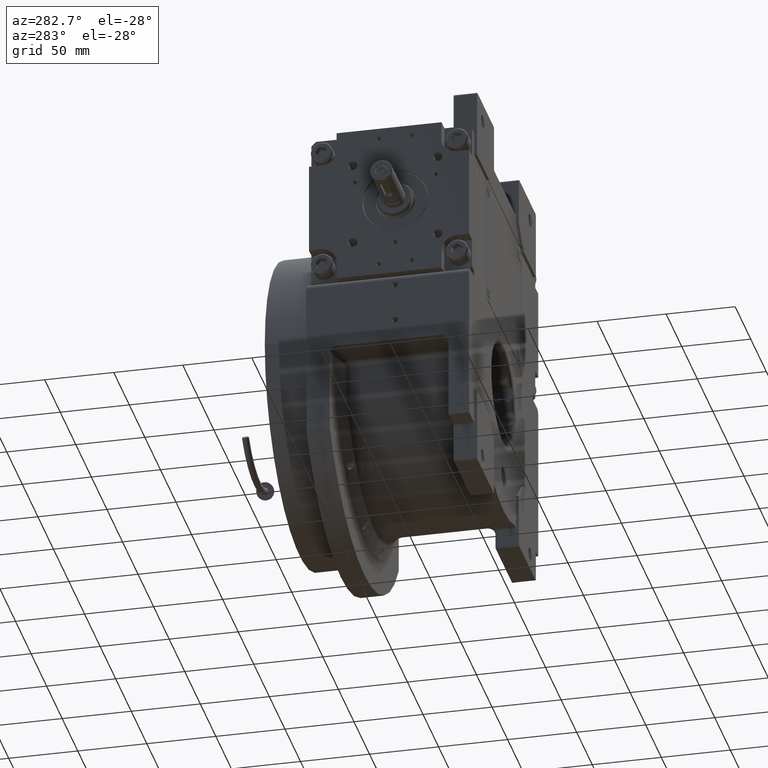
[diagram: clean part render]
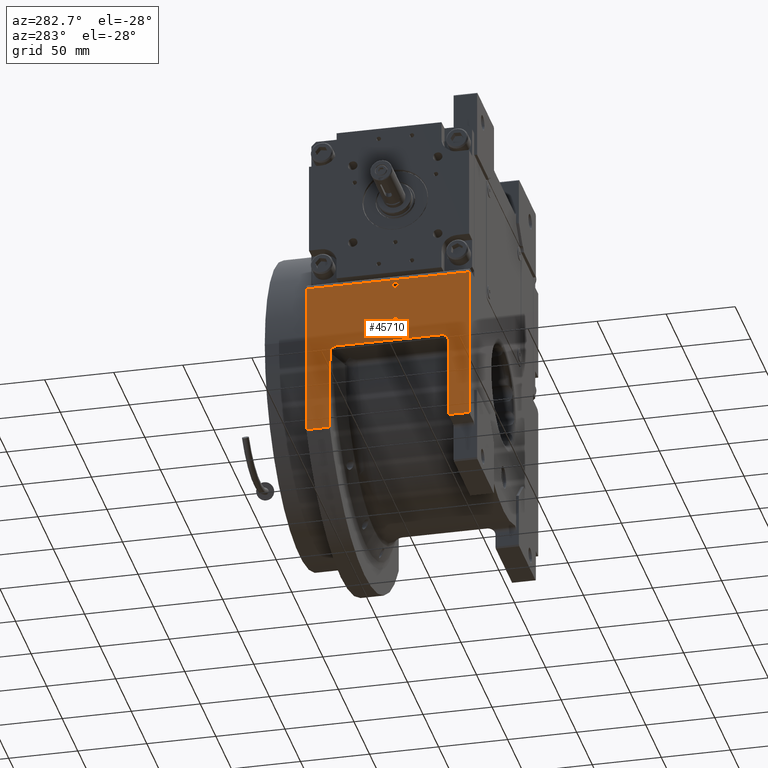
[diagram: same view with one face highlighted and labeled with its STEP entity id]
A machine part, auxiliary view. The second image highlights one B-rep face of the part: STEP entity #45710.
In plain terms, the highlighted planar face has unit normal (-1, 0, 0).
Its self-contained STEP definition (entity closure, byte-faithful):
#470 = ORIENTED_EDGE ( 'NONE', *, *, #44298, .T. ) ;
#1448 = VECTOR ( 'NONE', #68646, 1000.000000000000000 ) ;
#1565 = EDGE_LOOP ( 'NONE', ( #56351, #31490 ) ) ;
#2079 = CARTESIAN_POINT ( 'NONE',  ( -111.0000000000000142, 47.39775283363938030, -18.01025571059393826 ) ) ;
#3132 = CARTESIAN_POINT ( 'NONE',  ( -111.0000000000000000, -33.50000000000000000, -7.000000000000000000 ) ) ;
#3366 = CARTESIAN_POINT ( 'NONE',  ( -111.0000000000000142, 47.23304483909880958, -11.43688986518032635 ) ) ;
#3730 = CARTESIAN_POINT ( 'NONE',  ( -111.0000000000000142, 47.17730589702550503, -10.96906219321990150 ) ) ;
#3801 = ORIENTED_EDGE ( 'NONE', *, *, #66206, .T. ) ;
#4188 = ORIENTED_EDGE ( 'NONE', *, *, #17393, .F. ) ;
#4438 = VECTOR ( 'NONE', #65009, 1000.000000000000000 ) ;
#4695 = CARTESIAN_POINT ( 'NONE',  ( -111.0000000000000000, 2.100000000000000089, 37.00000000000000000 ) ) ;
#5719 = CARTESIAN_POINT ( 'NONE',  ( -111.0000000000000000, -2.100000000000000089, 37.00000000000000000 ) ) ;
#6119 = CARTESIAN_POINT ( 'NONE',  ( -111.0000000000000000, -38.50000000000000000, -12.17638090205042189 ) ) ;
#6448 = ORIENTED_EDGE ( 'NONE', *, *, #12767, .F. ) ;
#6502 = VERTEX_POINT ( 'NONE', #21757 ) ;
#6753 = VERTEX_POINT ( 'NONE', #67785 ) ;
#7956 = CARTESIAN_POINT ( 'NONE',  ( -111.0000000000000000, -2.100000000000000089, 9.000000000000000000 ) ) ;
#8390 = EDGE_CURVE ( 'NONE', #6502, #24526, #61072, .T. ) ;
#8938 = CARTESIAN_POINT ( 'NONE',  ( -111.0000000000000284, 44.80537002266407853, -7.628406989121505610 ) ) ;
#9105 = DIRECTION ( 'NONE',  ( 1.000000000000000000, 0.000000000000000000, 0.000000000000000000 ) ) ;
#9311 = CARTESIAN_POINT ( 'NONE',  ( -111.0000000000000142, 43.04624886168785025, -7.001080695584134261 ) ) ;
#9532 = VERTEX_POINT ( 'NONE', #4695 ) ;
#10273 = CIRCLE ( 'NONE', #52629, 2.100000000000000089 ) ;
#10298 = VERTEX_POINT ( 'NONE', #24074 ) ;
#10341 = DIRECTION ( 'NONE',  ( 0.000000000000000000, -1.000000000000000000, 0.000000000000000000 ) ) ;
#11539 = DIRECTION ( 'NONE',  ( 1.000000000000000000, 0.000000000000000000, 0.000000000000000000 ) ) ;
#11942 = LINE ( 'NONE', #17502, #4438 ) ;
#12175 = CARTESIAN_POINT ( 'NONE',  ( -110.9999999999999716, 47.35640947859300098, -16.28572579493090444 ) ) ;
#12355 = CARTESIAN_POINT ( 'NONE',  ( -111.0000000000000000, -33.50000000000000000, -7.000000000000000000 ) ) ;
#12519 = CARTESIAN_POINT ( 'NONE',  ( -111.0000000000000142, 47.38697793714037942, -17.55712914402924696 ) ) ;
#12767 = EDGE_CURVE ( 'NONE', #37406, #6502, #42397, .T. ) ;
#13923 = EDGE_CURVE ( 'NONE', #9532, #23347, #10273, .T. ) ;
#14769 = ORIENTED_EDGE ( 'NONE', *, *, #55313, .F. ) ;
#15201 = CARTESIAN_POINT ( 'NONE',  ( -111.0000000000000142, 46.90681310458562336, -10.07660401504372771 ) ) ;
#15991 = CARTESIAN_POINT ( 'NONE',  ( -111.0000000000000000, 64.50000000000000000, 41.00000000000000000 ) ) ;
#16752 = CARTESIAN_POINT ( 'NONE',  ( -111.0000000000000000, -3.552713678800499352E-15, 37.00000000000000000 ) ) ;
#16892 = DIRECTION ( 'NONE',  ( 0.000000000000000000, 0.000000000000000000, 1.000000000000000000 ) ) ;
#17393 = EDGE_CURVE ( 'NONE', #24526, #68305, #24162, .T. ) ;
#17502 = CARTESIAN_POINT ( 'NONE',  ( -111.0000000000000000, 47.50000000000000000, -71.43528539874399996 ) ) ;
#17570 = LINE ( 'NONE', #32613, #42520 ) ;
#18168 = AXIS2_PLACEMENT_3D ( 'NONE', #68532, #36729, #57372 ) ;
#18170 = VERTEX_POINT ( 'NONE', #7956 ) ;
#18736 = ORIENTED_EDGE ( 'NONE', *, *, #52611, .T. ) ;
#18770 = ORIENTED_EDGE ( 'NONE', *, *, #20416, .T. ) ;
#20280 = ORIENTED_EDGE ( 'NONE', *, *, #8390, .F. ) ;
#20416 = EDGE_CURVE ( 'NONE', #6753, #46917, #17570, .T. ) ;
#20767 = VERTEX_POINT ( 'NONE', #64901 ) ;
#20807 = EDGE_CURVE ( 'NONE', #46917, #22853, #66960, .T. ) ;
#20921 = VECTOR ( 'NONE', #28950, 1000.000000000000000 ) ;
#21757 = CARTESIAN_POINT ( 'NONE',  ( -111.0000000000000000, -53.50000000000000000, 41.00000000000000000 ) ) ;
#22853 = VERTEX_POINT ( 'NONE', #36856 ) ;
#23012 = CARTESIAN_POINT ( 'NONE',  ( -111.0000000000000142, 47.38804427955523835, -17.60168279826294579 ) ) ;
#23345 = CARTESIAN_POINT ( 'NONE',  ( -110.9999999999999858, 47.49184152199143227, -23.26125549203704068 ) ) ;
#23347 = VERTEX_POINT ( 'NONE', #5719 ) ;
#23473 = VECTOR ( 'NONE', #10341, 1000.000000000000000 ) ;
#23518 = DIRECTION ( 'NONE',  ( -1.000000000000000000, 0.000000000000000000, 0.000000000000000000 ) ) ;
#23598 = VECTOR ( 'NONE', #66483, 1000.000000000000000 ) ;
#23734 = CARTESIAN_POINT ( 'NONE',  ( -111.0000000000000000, -53.50000000000000000, 41.00000000000000000 ) ) ;
#24074 = CARTESIAN_POINT ( 'NONE',  ( -111.0000000000000000, -38.50000000000000000, -12.17638090205042189 ) ) ;
#24162 = LINE ( 'NONE', #67109, #61825 ) ;
#24300 = CARTESIAN_POINT ( 'NONE',  ( -111.0000000000000284, 43.65692249831813143, -7.119924177572298341 ) ) ;
#24526 = VERTEX_POINT ( 'NONE', #62649 ) ;
#25150 = CARTESIAN_POINT ( 'NONE',  ( -111.0000000000000000, -3.552713678800499352E-15, 37.00000000000000000 ) ) ;
#25356 = CARTESIAN_POINT ( 'NONE',  ( -111.0000000000000142, 46.96112643920030649, -10.22283934410663697 ) ) ;
#25756 =( BOUNDED_CURVE ( )  B_SPLINE_CURVE ( 3, ( #12355, #65425, #49003, #6119 ),
 .UNSPECIFIED., .F., .F. ) 
 B_SPLINE_CURVE_WITH_KNOTS ( ( 4, 4 ),
 ( 3.141592653590854045, 4.712388980385856740 ),
 .UNSPECIFIED. ) 
 CURVE ( )  GEOMETRIC_REPRESENTATION_ITEM ( )  RATIONAL_B_SPLINE_CURVE ( ( 1.000000000000000000, 0.8047378541243400685, 0.8047378541243400685, 1.000000000000000000 ) ) 
 REPRESENTATION_ITEM ( '' )  );
#26679 = DIRECTION ( 'NONE',  ( 0.000000000000000000, 0.000000000000000000, 1.000000000000000000 ) ) ;
#26722 = LINE ( 'NONE', #47321, #1448 ) ;
#28586 = CARTESIAN_POINT ( 'NONE',  ( -111.0000000000000284, 47.26671036820440008, -12.69711666045169274 ) ) ;
#28950 = DIRECTION ( 'NONE',  ( 0.000000000000000000, 0.000000000000000000, -1.000000000000000000 ) ) ;
#29220 = EDGE_CURVE ( 'NONE', #18170, #36819, #39966, .T. ) ;
#29875 = CARTESIAN_POINT ( 'NONE',  ( -110.9999998426041969, 47.24161804384319652, -11.75654023702319861 ) ) ;
#30447 = DIRECTION ( 'NONE',  ( 0.000000000000000000, 1.000000000000000000, 0.000000000000000000 ) ) ;
#30550 = EDGE_LOOP ( 'NONE', ( #14769, #39811, #18770, #48476, #3801, #42208, #470, #18736, #4188, #20280, #6448 ) ) ;
#30979 = EDGE_LOOP ( 'NONE', ( #56790, #44918 ) ) ;
#31490 = ORIENTED_EDGE ( 'NONE', *, *, #29220, .T. ) ;
#32240 = VECTOR ( 'NONE', #57897, 1000.000000000000000 ) ;
#32613 = CARTESIAN_POINT ( 'NONE',  ( -111.0000000000000000, 47.50000000000000000, -71.43528539874399996 ) ) ;
#32830 = DIRECTION ( 'NONE',  ( 0.000000000000000000, 1.000000000000000000, 0.000000000000000000 ) ) ;
#32965 = FACE_BOUND ( 'NONE', #30979, .T. ) ;
#33134 = CARTESIAN_POINT ( 'NONE',  ( -111.0000000000000000, 47.50000000000000000, -25.44626115736729588 ) ) ;
#33994 = CARTESIAN_POINT ( 'NONE',  ( -111.0000000000000000, -53.50000000000000000, -71.43528539874399996 ) ) ;
#34157 = CARTESIAN_POINT ( 'NONE',  ( -110.9999998426041969, 47.24161804384319652, -11.75654023702319861 ) ) ;
#34859 = CARTESIAN_POINT ( 'NONE',  ( -111.0000000000000000, 64.50000000000000000, -71.43528539874399996 ) ) ;
#35648 = AXIS2_PLACEMENT_3D ( 'NONE', #50973, #61799, #57620 ) ;
#35809 = CARTESIAN_POINT ( 'NONE',  ( -111.0000000000000142, 45.57238403428445395, -8.162200170006535416 ) ) ;
#35897 = CARTESIAN_POINT ( 'NONE',  ( -111.0000000000000000, -38.50000000000000000, -12.17638090205040058 ) ) ;
#36106 = EDGE_CURVE ( 'NONE', #49618, #20767, #26722, .T. ) ;
#36510 = CARTESIAN_POINT ( 'NONE',  ( -110.9999999999999574, 46.59747468668511772, -9.345669636517394352 ) ) ;
#36519 = CARTESIAN_POINT ( 'NONE',  ( -111.0000000000000000, 64.50000000000000000, 41.00000000000000000 ) ) ;
#36729 = DIRECTION ( 'NONE',  ( 1.000000000000000000, 0.000000000000000000, 0.000000000000000000 ) ) ;
#36819 = VERTEX_POINT ( 'NONE', #45756 ) ;
#36856 = CARTESIAN_POINT ( 'NONE',  ( -110.9999998426041969, 47.24161804384319652, -11.75654023702319861 ) ) ;
#37406 = VERTEX_POINT ( 'NONE', #15991 ) ;
#38004 = CARTESIAN_POINT ( 'NONE',  ( -111.0000000000000000, 47.37801887890174868, -17.18315811918595060 ) ) ;
#39811 = ORIENTED_EDGE ( 'NONE', *, *, #53088, .F. ) ;
#39966 = CIRCLE ( 'NONE', #35648, 2.100000000000000089 ) ;
#40265 = CARTESIAN_POINT ( 'NONE',  ( -111.0000000000000000, 64.50000000000000000, -71.43528539874399996 ) ) ;
#40596 = EDGE_CURVE ( 'NONE', #23347, #9532, #49118, .T. ) ;
#41598 = CIRCLE ( 'NONE', #18168, 2.100000000000000089 ) ;
#41728 = CARTESIAN_POINT ( 'NONE',  ( -110.9999999999999858, 44.52823829090591090, -7.482778073993033630 ) ) ;
#42208 = ORIENTED_EDGE ( 'NONE', *, *, #36106, .F. ) ;
#42397 = LINE ( 'NONE', #36519, #23473 ) ;
#42520 = VECTOR ( 'NONE', #26679, 1000.000000000000000 ) ;
#43440 = EDGE_CURVE ( 'NONE', #36819, #18170, #41598, .T. ) ;
#43838 = B_SPLINE_CURVE_WITH_KNOTS ( 'NONE', 3,
 ( #29875, #3366, #3730, #56404, #25356, #15201, #50824, #36510, #46629, #35809, #57119, #8938, #41728, #67954, #24300, #9311, #57470 ),
 .UNSPECIFIED., .F., .F.,
 ( 4, 1, 1, 2, 2, 2, 1, 2, 2, 4 ),
 ( 0.000000000000000000, 0.1249999999999996114, 0.1874999999999987788, 0.2187499999999980571, 0.2499999999999973077, 0.4999999999999975575, 0.6249999999999972244, 0.6874999999999972244, 0.7499999999999972244, 1.000000000000000000 ),
 .UNSPECIFIED. ) ;
#44270 = CARTESIAN_POINT ( 'NONE',  ( -111.0000000000000568, 47.38398366112607363, -17.43201616111707608 ) ) ;
#44298 = EDGE_CURVE ( 'NONE', #49618, #10298, #25756, .T. ) ;
#44606 = CARTESIAN_POINT ( 'NONE',  ( -111.0000000000000284, 47.30739276393136095, -14.28307552350015541 ) ) ;
#44918 = ORIENTED_EDGE ( 'NONE', *, *, #40596, .T. ) ;
#45710 = ADVANCED_FACE ( 'NONE', ( #48990, #32965, #59520 ), #60863, .T. ) ;
#45756 = CARTESIAN_POINT ( 'NONE',  ( -111.0000000000000000, 2.100000000000000089, 9.000000000000000000 ) ) ;
#45764 = AXIS2_PLACEMENT_3D ( 'NONE', #25150, #9105, #57956 ) ;
#46629 = CARTESIAN_POINT ( 'NONE',  ( -110.9999999999999574, 46.24926438878902246, -8.831662360591032268 ) ) ;
#46917 = VERTEX_POINT ( 'NONE', #56746 ) ;
#47321 = CARTESIAN_POINT ( 'NONE',  ( -111.0000000000000000, -33.50000000000000000, -7.000000000000000000 ) ) ;
#47420 = AXIS2_PLACEMENT_3D ( 'NONE', #33994, #23518, #16892 ) ;
#47721 = LINE ( 'NONE', #35897, #32240 ) ;
#48476 = ORIENTED_EDGE ( 'NONE', *, *, #20807, .T. ) ;
#48990 = FACE_BOUND ( 'NONE', #1565, .T. ) ;
#49003 = CARTESIAN_POINT ( 'NONE',  ( -111.0000000000000284, -38.50000000000000000, -9.144127173638402439 ) ) ;
#49118 = CIRCLE ( 'NONE', #45764, 2.100000000000000089 ) ;
#49618 = VERTEX_POINT ( 'NONE', #3132 ) ;
#49628 = VERTEX_POINT ( 'NONE', #34859 ) ;
#50824 = CARTESIAN_POINT ( 'NONE',  ( -111.0000000000000142, 46.87834784565706059, -10.00509416193215095 ) ) ;
#50973 = CARTESIAN_POINT ( 'NONE',  ( -111.0000000000000000, -3.552713678800499352E-15, 9.000000000000000000 ) ) ;
#51098 = LINE ( 'NONE', #40265, #23598 ) ;
#52074 = CARTESIAN_POINT ( 'NONE',  ( -111.0000000000000000, -38.50000000000000000, -71.43528539874409944 ) ) ;
#52611 = EDGE_CURVE ( 'NONE', #10298, #68305, #47721, .T. ) ;
#52629 = AXIS2_PLACEMENT_3D ( 'NONE', #16752, #11539, #32830 ) ;
#53088 = EDGE_CURVE ( 'NONE', #6753, #49628, #11942, .T. ) ;
#54416 = CARTESIAN_POINT ( 'NONE',  ( -111.0000000000000284, 47.38981798226070907, -17.67600262140464196 ) ) ;
#54761 = CARTESIAN_POINT ( 'NONE',  ( -110.9999999999999858, 47.45869610671962846, -20.70783326501533494 ) ) ;
#55313 = EDGE_CURVE ( 'NONE', #49628, #37406, #51098, .T. ) ;
#56351 = ORIENTED_EDGE ( 'NONE', *, *, #43440, .T. ) ;
#56404 = CARTESIAN_POINT ( 'NONE',  ( -111.0000000000000000, 47.03723638803381846, -10.44364842193959575 ) ) ;
#56746 = CARTESIAN_POINT ( 'NONE',  ( -111.0000000000000000, 47.50000000000000000, -25.44626115736729588 ) ) ;
#56790 = ORIENTED_EDGE ( 'NONE', *, *, #13923, .T. ) ;
#57119 = CARTESIAN_POINT ( 'NONE',  ( -111.0000000000000000, 45.20819138357048672, -7.866231648914137509 ) ) ;
#57372 = DIRECTION ( 'NONE',  ( 0.000000000000000000, 1.000000000000000000, 1.652117596168387559E-15 ) ) ;
#57470 = CARTESIAN_POINT ( 'NONE',  ( -110.9999999993382005, 42.40620941626179530, -7.000000000177450055 ) ) ;
#57620 = DIRECTION ( 'NONE',  ( 0.000000000000000000, -1.000000000000000000, -1.652117596168387559E-15 ) ) ;
#57897 = DIRECTION ( 'NONE',  ( 0.000000000000000000, 0.000000000000000000, -1.000000000000000000 ) ) ;
#57956 = DIRECTION ( 'NONE',  ( 0.000000000000000000, -1.000000000000000000, 0.000000000000000000 ) ) ;
#59520 = FACE_OUTER_BOUND ( 'NONE', #30550, .T. ) ;
#60863 = PLANE ( 'NONE',  #47420 ) ;
#61072 = LINE ( 'NONE', #23734, #20921 ) ;
#61799 = DIRECTION ( 'NONE',  ( 1.000000000000000000, 0.000000000000000000, 0.000000000000000000 ) ) ;
#61825 = VECTOR ( 'NONE', #30447, 1000.000000000000000 ) ;
#62649 = CARTESIAN_POINT ( 'NONE',  ( -111.0000000000000000, -53.50000000000000000, -71.43528539874409944 ) ) ;
#64901 = CARTESIAN_POINT ( 'NONE',  ( -110.9999999993382005, 42.40620941626179530, -7.000000000177450055 ) ) ;
#65009 = DIRECTION ( 'NONE',  ( 0.000000000000000000, 1.000000000000000000, 0.000000000000000000 ) ) ;
#65425 = CARTESIAN_POINT ( 'NONE',  ( -111.0000000000000142, -36.42893218813447476, -6.999999999999989342 ) ) ;
#66206 = EDGE_CURVE ( 'NONE', #22853, #20767, #43838, .T. ) ;
#66483 = DIRECTION ( 'NONE',  ( 0.000000000000000000, 0.000000000000000000, 1.000000000000000000 ) ) ;
#66960 = B_SPLINE_CURVE_WITH_KNOTS ( 'NONE', 3,
 ( #33134, #23345, #54761, #2079, #54416, #23012, #12519, #44270, #38004, #12175, #44606, #28586, #34157 ),
 .UNSPECIFIED., .F., .F.,
 ( 4, 1, 1, 2, 2, 1, 1, 1, 4 ),
 ( 0.000000000000000000, 0.4999999999999906741, 0.5624999999999891198, 0.5703124999999893419, 0.5781249999999896749, 0.5937499999999901190, 0.6249999999999905631, 0.7499999999999935607, 1.000000000000000000 ),
 .UNSPECIFIED. ) ;
#67109 = CARTESIAN_POINT ( 'NONE',  ( -111.0000000000000000, -53.50000000000000000, -71.43528539874409944 ) ) ;
#67785 = CARTESIAN_POINT ( 'NONE',  ( -111.0000000000000000, 47.50000000000000000, -71.43528539874399996 ) ) ;
#67954 = CARTESIAN_POINT ( 'NONE',  ( -111.0000000000000000, 44.38355727844160015, -7.415682013062533606 ) ) ;
#68305 = VERTEX_POINT ( 'NONE', #52074 ) ;
#68532 = CARTESIAN_POINT ( 'NONE',  ( -111.0000000000000000, -3.552713678800499352E-15, 9.000000000000000000 ) ) ;
#68646 = DIRECTION ( 'NONE',  ( 0.000000000000000000, 1.000000000000000000, 0.000000000000000000 ) ) ;